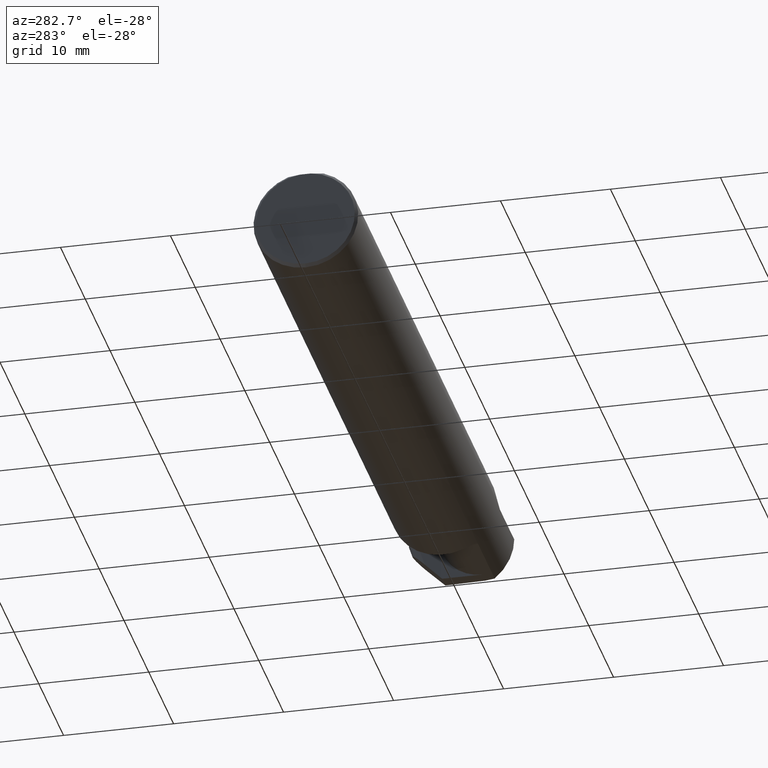
[diagram: clean part render]
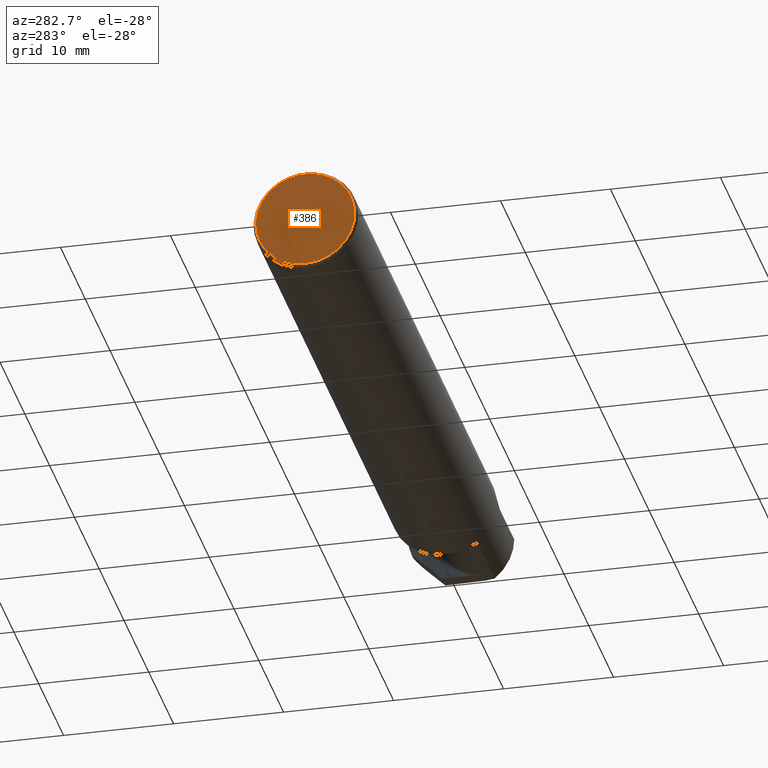
[diagram: same view with one face highlighted and labeled with its STEP entity id]
A machine part, auxiliary view. The second image highlights one B-rep face of the part: STEP entity #386.
In plain terms, the highlighted planar face has unit normal (1, 0, 0).
Its self-contained STEP definition (entity closure, byte-faithful):
#8 = DIRECTION ( 'NONE',  ( -1.000000000000000000, -0.000000000000000000, -0.000000000000000000 ) ) ;
#62 = CARTESIAN_POINT ( 'NONE',  ( 0.000000000000000000, 0.000000000000000000, 0.000000000000000000 ) ) ;
#68 = CIRCLE ( 'NONE', #462, 0.1773500000000005072 ) ;
#86 = CARTESIAN_POINT ( 'NONE',  ( 0.000000000000000000, 0.000000000000000000, 0.000000000000000000 ) ) ;
#161 = VERTEX_POINT ( 'NONE', #196 ) ;
#196 = CARTESIAN_POINT ( 'NONE',  ( 0.000000000000000000, 0.01880691362239451242, 0.1763499999999999235 ) ) ;
#291 = AXIS2_PLACEMENT_3D ( 'NONE', #62, #659, #451 ) ;
#299 = DIRECTION ( 'NONE',  ( 0.000000000000000000, 0.000000000000000000, -1.000000000000000000 ) ) ;
#356 = EDGE_LOOP ( 'NONE', ( #448, #594, #362 ) ) ;
#362 = ORIENTED_EDGE ( 'NONE', *, *, #477, .T. ) ;
#363 = CARTESIAN_POINT ( 'NONE',  ( 0.000000000000000000, 0.000000000000000000, -0.1773500000000005072 ) ) ;
#386 = ADVANCED_FACE ( 'NONE', ( #497 ), #508, .F. ) ;
#387 = CARTESIAN_POINT ( 'NONE',  ( 0.000000000000000000, 0.000000000000000000, 0.000000000000000000 ) ) ;
#389 = DIRECTION ( 'NONE',  ( -0.000000000000000000, 1.000000000000000000, -0.000000000000000000 ) ) ;
#422 = EDGE_CURVE ( 'NONE', #562, #161, #557, .T. ) ;
#448 = ORIENTED_EDGE ( 'NONE', *, *, #422, .T. ) ;
#451 = DIRECTION ( 'NONE',  ( 0.000000000000000000, 0.000000000000000000, -1.000000000000000000 ) ) ;
#460 = AXIS2_PLACEMENT_3D ( 'NONE', #387, #8, #609 ) ;
#462 = AXIS2_PLACEMENT_3D ( 'NONE', #86, #679, #299 ) ;
#477 = EDGE_CURVE ( 'NONE', #650, #562, #666, .T. ) ;
#497 = FACE_OUTER_BOUND ( 'NONE', #356, .T. ) ;
#501 = CARTESIAN_POINT ( 'NONE',  ( 0.000000000000000000, 0.1873499999999998500, 0.1763499999999999235 ) ) ;
#508 = PLANE ( 'NONE',  #291 ) ;
#557 = LINE ( 'NONE', #501, #705 ) ;
#562 = VERTEX_POINT ( 'NONE', #622 ) ;
#566 = EDGE_CURVE ( 'NONE', #161, #650, #68, .T. ) ;
#594 = ORIENTED_EDGE ( 'NONE', *, *, #566, .T. ) ;
#609 = DIRECTION ( 'NONE',  ( 0.000000000000000000, 0.000000000000000000, -1.000000000000000000 ) ) ;
#622 = CARTESIAN_POINT ( 'NONE',  ( 0.000000000000000000, -0.01880691362239451242, 0.1763499999999999235 ) ) ;
#650 = VERTEX_POINT ( 'NONE', #363 ) ;
#659 = DIRECTION ( 'NONE',  ( 1.000000000000000000, 0.000000000000000000, 0.000000000000000000 ) ) ;
#666 = CIRCLE ( 'NONE', #460, 0.1773500000000005072 ) ;
#679 = DIRECTION ( 'NONE',  ( -1.000000000000000000, -0.000000000000000000, -0.000000000000000000 ) ) ;
#705 = VECTOR ( 'NONE', #389, 39.37007874015748143 ) ;